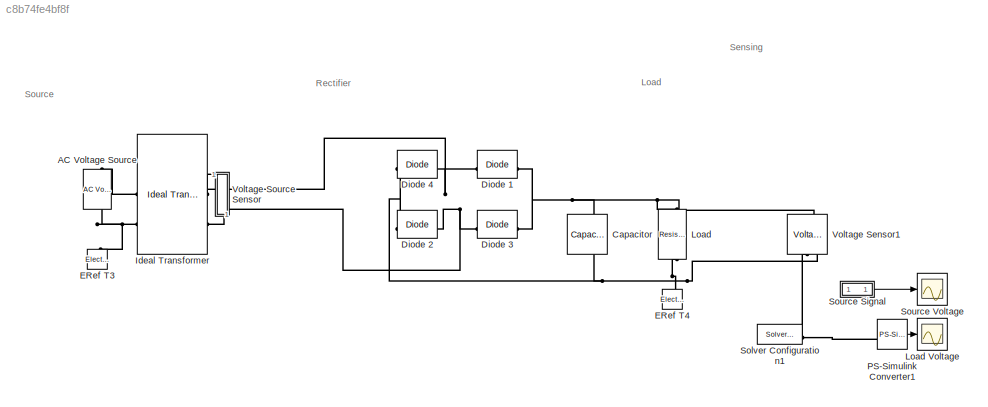
MODEL slx_c8b74fe4bf8f
KIND model
CONFIG AbsTol = auto
CONFIG EnableMultiTasking = off
CONFIG FixedStep = auto
CONFIG MaxStep = auto
CONFIG MinStep = auto
CONFIG RelTol = 1e-3
CONFIG SampleTimeConstraint = Unconstrained
CONFIG SolverName = VariableStepAuto
CONFIG StartTime = 0.0
CONFIG StopTime = 0.1
BLOCK [Reference] AC Voltage Source  REF=fl_lib/Electrical/Electrical Sources/AC Voltage Source
  NameLocation = left
  SourceBlock = fl_lib/Electrical/Electrical Sources/AC Voltage Source
  SourceType = AC Voltage Source
BLOCK [Reference] Capacitor  REF=fl_lib/Electrical/Electrical Elements/Capacitor
  NameLocation = right
  SourceBlock = fl_lib/Electrical/Electrical Elements/Capacitor
  SourceType = Capacitor
BLOCK [Reference] Diode 1  REF=fl_lib/Electrical/Electrical Elements/Diode
  NameLocation = top
  SourceBlock = fl_lib/Electrical/Electrical Elements/Diode
  SourceType = Diode
BLOCK [Reference] Diode 2  REF=fl_lib/Electrical/Electrical Elements/Diode
  SourceBlock = fl_lib/Electrical/Electrical Elements/Diode
  SourceType = Diode
BLOCK [Reference] Diode 3  REF=fl_lib/Electrical/Electrical Elements/Diode
  SourceBlock = fl_lib/Electrical/Electrical Elements/Diode
  SourceType = Diode
BLOCK [Reference] Diode 4  REF=fl_lib/Electrical/Electrical Elements/Diode
  NameLocation = top
  SourceBlock = fl_lib/Electrical/Electrical Elements/Diode
  SourceType = Diode
BLOCK [Reference] ERef T3  REF=fl_lib/Electrical/Electrical Elements/Electrical Reference
  NameLocation = left
  SourceBlock = fl_lib/Electrical/Electrical Elements/Electrical Reference
  SourceType = Electrical Reference
BLOCK [Reference] ERef T4  REF=fl_lib/Electrical/Electrical Elements/Electrical Reference
  NameLocation = right
  SourceBlock = fl_lib/Electrical/Electrical Elements/Electrical Reference
  SourceType = Electrical Reference
BLOCK [Reference] Ideal Transformer  REF=fl_lib/Electrical/Electrical Elements/Ideal Transformer
  NameLocation = top
  SourceBlock = fl_lib/Electrical/Electrical Elements/Ideal Transformer
  SourceType = Ideal Transformer
BLOCK [Reference] Load  REF=fl_lib/Electrical/Electrical Elements/Resistor
  NameLocation = right
  SourceBlock = fl_lib/Electrical/Electrical Elements/Resistor
  SourceType = Resistor
BLOCK [Scope] Load Voltage
  Floating = off
  NumInputPorts = 1
  ScopeSpecificationString = Simulink.scopes.TimeScopeBlockCfg('CurrentConfiguration', extmgr.ConfigurationSet(extmgr.Configuration('Core','General UI',true,'FigureColor',[0.501960784313725 0.501960784313725 0.501960784313725]),extmgr.Configuration('Core','Source UI',true),extmgr.Configuration('Sources','WiredSimulink',true,'DataLoggingSaveFormat','Array','DataLoggingDecimation','1','DataLogging',true),extmgr.Configuration('V...<+2774ch>
  Tag = PublishScope
BLOCK [Reference] PS-Simulink Converter1  REF=nesl_utility/PS-Simulink
Converter
  NameLocation = top
  SourceBlock = nesl_utility/PS-Simulink\nConverter
  SourceType = PS-Simulink\nConverter
BLOCK [Reference] Solver Configuration1  REF=nesl_utility/Solver
Configuration
  SourceBlock = nesl_utility/Solver\nConfiguration
  SourceType = Solver\nConfiguration
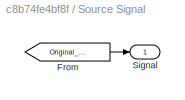
BLOCK [SubSystem] Source Signal
  NameLocation = top
BLOCK [From] Source Signal/From
  GotoTag = Original_Signal
  IconDisplay = Signal name
  TagVisibility = global
BLOCK [Outport] Source Signal/Signal
BLOCK [Scope] Source Voltage
  Floating = off
  NameLocation = top
  NumInputPorts = 1
  ScopeSpecificationString = Simulink.scopes.TimeScopeBlockCfg('CurrentConfiguration', extmgr.ConfigurationSet(extmgr.Configuration('Core','General UI',true,'FigureColor',[0.501960784313725 0.501960784313725 0.501960784313725]),extmgr.Configuration('Core','Source UI',true),extmgr.Configuration('Sources','WiredSimulink',true,'DataLoggingSaveFormat','Array','DataLoggingDecimation','1','DataLogging',true,'DataLoggingVariableName...<+2779ch>
  Tag = PublishScope
BLOCK [Reference] Voltage Sensor1  REF=fl_lib/Electrical/Electrical Sensors/Voltage Sensor
  NameLocation = right
  SourceBlock = fl_lib/Electrical/Electrical Sensors/Voltage Sensor
  SourceType = Voltage Sensor
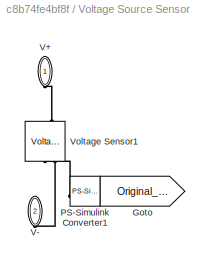
BLOCK [SubSystem] Voltage Source Sensor
  NameLocation = right
BLOCK [Goto] Voltage Source Sensor/Goto
  GotoTag = Original_Signal
  TagVisibility = global
BLOCK [Reference] Voltage Source Sensor/PS-Simulink Converter1  REF=nesl_utility/PS-Simulink
Converter
  NameLocation = top
  SourceBlock = nesl_utility/PS-Simulink\nConverter
  SourceType = PS-Simulink\nConverter
BLOCK [PMIOPort] Voltage Source Sensor/V+
  NameLocation = left
  Side = Left
BLOCK [PMIOPort] Voltage Source Sensor/V-
  NameLocation = left
  Port = 2
  Side = Right
BLOCK [Reference] Voltage Source Sensor/Voltage Sensor1  REF=fl_lib/Electrical/Electrical Sensors/Voltage Sensor
  NameLocation = right
  SourceBlock = fl_lib/Electrical/Electrical Sensors/Voltage Sensor
  SourceType = Voltage Sensor
ANNOTATION (root): Load
ANNOTATION (root): Rectifier
ANNOTATION (root): Sensing
ANNOTATION (root): Source
LINE PS-Simulink Converter1:1 -> Load Voltage:1
LINE Source Signal/From:1 -> Source Signal/Signal:1
LINE Source Signal:1 -> Source Voltage:1
LINE Voltage Source Sensor/PS-Simulink Converter1:1 -> Voltage Source Sensor/Goto:1
PLINE AC Voltage Source:LConn1 -- Ideal Transformer:LConn1
PNET net1: AC Voltage Source:RConn1 -- ERef T3:LConn1 -- Ideal Transformer:LConn2
PNET net2: Capacitor:LConn1 -- Diode 1:RConn1 -- Diode 3:RConn1 -- Load:LConn1 -- Voltage Sensor1:LConn1
PNET net3: Capacitor:RConn1 -- Diode 2:LConn1 -- Diode 4:LConn1 -- ERef T4:LConn1 -- Load:RConn1 -- Voltage Sensor1:RConn2
PNET net4: Diode 1:LConn1 -- Diode 4:RConn1 -- Ideal Transformer:RConn1 -- Voltage Source Sensor:LConn1
PNET net5: Diode 2:RConn1 -- Diode 3:LConn1 -- Ideal Transformer:RConn2 -- Voltage Source Sensor:RConn1
PNET net6: PS-Simulink Converter1:LConn1 -- Solver Configuration1:RConn1 -- Voltage Sensor1:RConn1
PLINE Voltage Source Sensor/PS-Simulink Converter1:LConn1 -- Voltage Source Sensor/Voltage Sensor1:RConn1
PLINE Voltage Source Sensor/V+:RConn1 -- Voltage Source Sensor/Voltage Sensor1:LConn1
PLINE Voltage Source Sensor/V-:RConn1 -- Voltage Source Sensor/Voltage Sensor1:RConn2
note: PNET lines group multi-terminal physical nets as a canonical sorted terminal list (undirected conserving connections); 2-terminal nets keep the pairwise PLINE form
